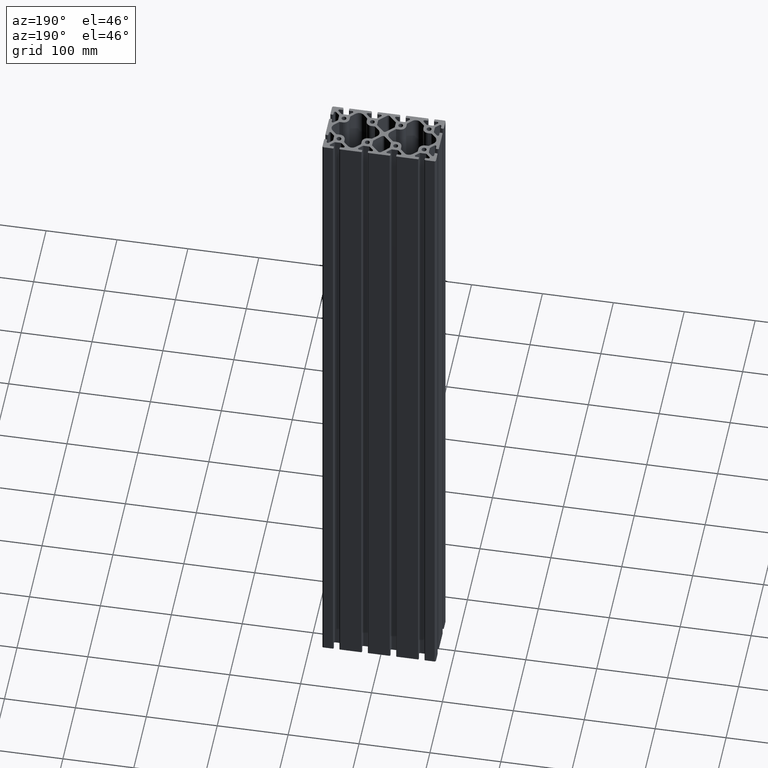
[diagram: clean part render]
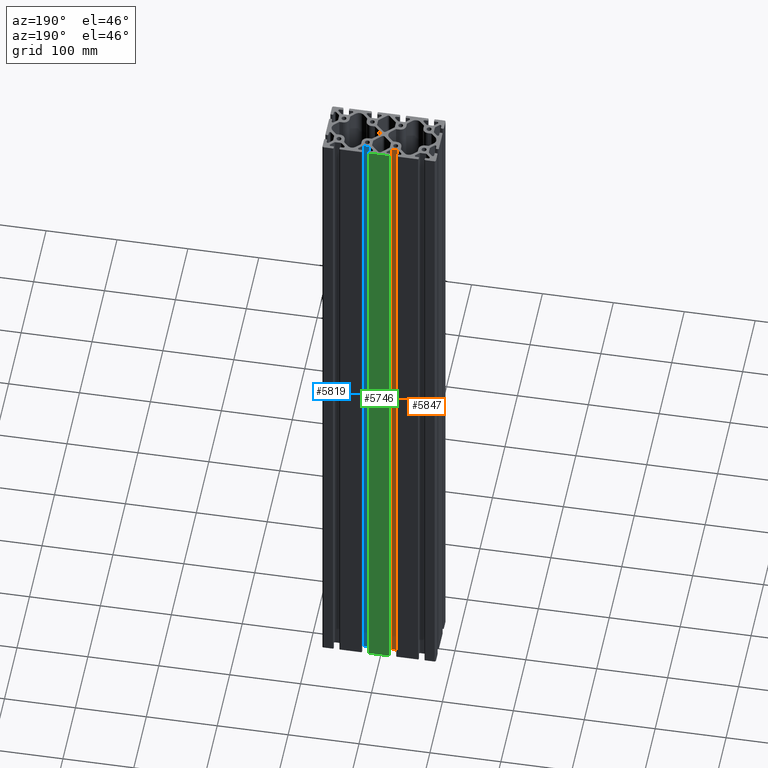
[diagram: same view with three faces highlighted in distinct colors, each labeled with its STEP entity id]
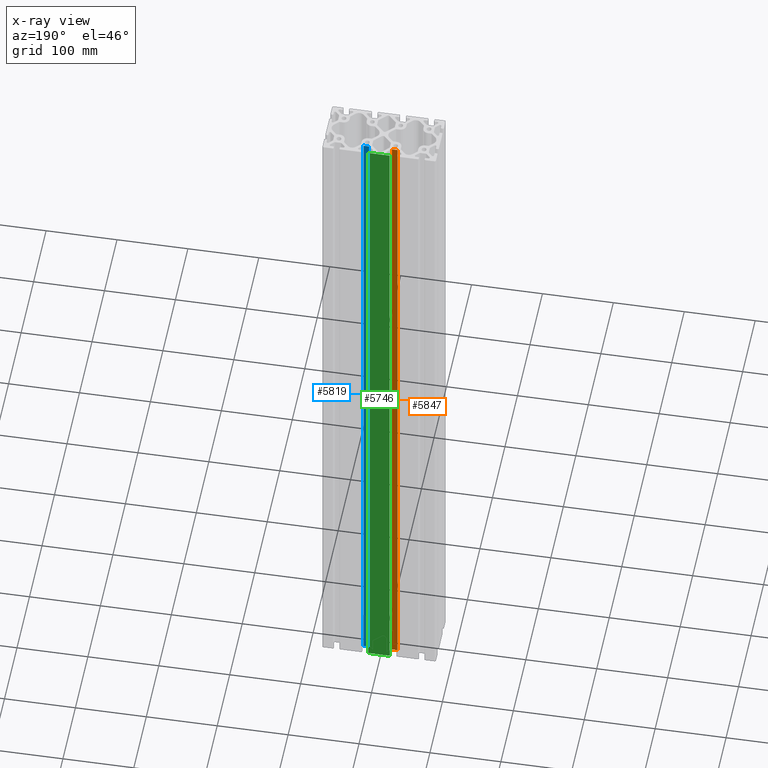
[diagram: x-ray of the same camera — body ghosted, the three highlighted faces saturated]
A machine part, auxiliary view with three faces highlighted in distinct colors.
The next image is the same camera in x-ray (body ghosted, the three faces saturated) — at least one of them is partly hidden behind the body in this view.
Their STEP definitions:

[orange] entity #5847 — the highlighted planar face has unit normal (0, -1, 0).
#112=PLANE('',#6472);
#347=FACE_OUTER_BOUND('',#669,.T.);
#669=EDGE_LOOP('',(#4989,#4990,#4991,#4992));
#970=LINE('',#8946,#1554);
#1101=LINE('',#9453,#1685);
#1308=LINE('',#9960,#1892);
#1310=LINE('',#9963,#1894);
#1554=VECTOR('',#7069,10.);
#1685=VECTOR('',#7476,10.);
#1892=VECTOR('',#8045,10.);
#1894=VECTOR('',#8049,10.);
#2510=VERTEX_POINT('',#8943);
#2511=VERTEX_POINT('',#8945);
#2748=VERTEX_POINT('',#9450);
#2749=VERTEX_POINT('',#9452);
#3131=EDGE_CURVE('',#2510,#2511,#970,.T.);
#3395=EDGE_CURVE('',#2748,#2749,#1101,.T.);
#3676=EDGE_CURVE('',#2511,#2748,#1308,.T.);
#3678=EDGE_CURVE('',#2749,#2510,#1310,.T.);
#4989=ORIENTED_EDGE('',*,*,#3676,.F.);
#4990=ORIENTED_EDGE('',*,*,#3131,.F.);
#4991=ORIENTED_EDGE('',*,*,#3678,.F.);
#4992=ORIENTED_EDGE('',*,*,#3395,.F.);
#5847=ADVANCED_FACE('',(#347),#112,.F.);
#6472=AXIS2_PLACEMENT_3D('',#9962,#8047,#8048);
#7069=DIRECTION('',(1.,0.,0.));
#7476=DIRECTION('',(-1.,0.,0.));
#8045=DIRECTION('',(0.,0.,1.));
#8047=DIRECTION('center_axis',(0.,-1.,0.));
#8048=DIRECTION('ref_axis',(1.,0.,0.));
#8049=DIRECTION('',(0.,0.,-1.));
#8943=CARTESIAN_POINT('',(-23.8431457505076,27.5,0.));
#8945=CARTESIAN_POINT('',(-16.1568542494924,27.5,0.));
#8946=CARTESIAN_POINT('',(-12.3357864376269,27.5,0.));
#9450=CARTESIAN_POINT('',(-16.1568542494924,27.5,1000.));
#9452=CARTESIAN_POINT('',(-23.8431457505076,27.5,1000.));
#9453=CARTESIAN_POINT('',(-12.3357864376269,27.5,1000.));
#9960=CARTESIAN_POINT('',(-16.1568542494924,27.5,0.));
#9962=CARTESIAN_POINT('Origin',(-24.6715728752538,27.5,0.));
#9963=CARTESIAN_POINT('',(-23.8431457505076,27.5,0.));

[blue] entity #5819 — the highlighted planar face has unit normal (0, -1, 0).
#98=PLANE('',#6444);
#319=FACE_OUTER_BOUND('',#641,.T.);
#641=EDGE_LOOP('',(#4877,#4878,#4879,#4880));
#978=LINE('',#8978,#1562);
#1093=LINE('',#9421,#1677);
#1272=LINE('',#9894,#1856);
#1274=LINE('',#9898,#1858);
#1562=VECTOR('',#7093,10.);
#1677=VECTOR('',#7452,10.);
#1856=VECTOR('',#7949,10.);
#1858=VECTOR('',#7955,10.);
#2526=VERTEX_POINT('',#8975);
#2527=VERTEX_POINT('',#8977);
#2732=VERTEX_POINT('',#9418);
#2733=VERTEX_POINT('',#9420);
#3147=EDGE_CURVE('',#2526,#2527,#978,.T.);
#3379=EDGE_CURVE('',#2732,#2733,#1093,.T.);
#3640=EDGE_CURVE('',#2733,#2526,#1272,.T.);
#3642=EDGE_CURVE('',#2527,#2732,#1274,.T.);
#4877=ORIENTED_EDGE('',*,*,#3640,.F.);
#4878=ORIENTED_EDGE('',*,*,#3379,.F.);
#4879=ORIENTED_EDGE('',*,*,#3642,.F.);
#4880=ORIENTED_EDGE('',*,*,#3147,.F.);
#5819=ADVANCED_FACE('',(#319),#98,.F.);
#6444=AXIS2_PLACEMENT_3D('',#9900,#7957,#7958);
#7093=DIRECTION('',(1.,0.,0.));
#7452=DIRECTION('',(-1.,0.,0.));
#7949=DIRECTION('',(0.,0.,-1.));
#7955=DIRECTION('',(0.,0.,1.));
#7957=DIRECTION('center_axis',(0.,-1.,0.));
#7958=DIRECTION('ref_axis',(1.,0.,0.));
#8975=CARTESIAN_POINT('',(16.1568542494924,27.5,0.));
#8977=CARTESIAN_POINT('',(23.8431457505076,27.5,0.));
#8978=CARTESIAN_POINT('',(7.6642135623731,27.5,0.));
#9418=CARTESIAN_POINT('',(23.8431457505076,27.5,1000.));
#9420=CARTESIAN_POINT('',(16.1568542494924,27.5,1000.));
#9421=CARTESIAN_POINT('',(7.66421356237309,27.5,1000.));
#9894=CARTESIAN_POINT('',(16.1568542494924,27.5,0.));
#9898=CARTESIAN_POINT('',(23.8431457505076,27.5,0.));
#9900=CARTESIAN_POINT('Origin',(15.3284271247462,27.5,0.));

[green] entity #5746 — the highlighted planar face has unit normal (0, 1, 0).
#69=PLANE('',#6371);
#246=FACE_OUTER_BOUND('',#568,.T.);
#568=EDGE_LOOP('',(#4585,#4586,#4587,#4588));
#974=LINE('',#8962,#1558);
#1097=LINE('',#9437,#1681);
#1175=LINE('',#9726,#1759);
#1177=LINE('',#9729,#1761);
#1558=VECTOR('',#7081,10.);
#1681=VECTOR('',#7464,10.);
#1759=VECTOR('',#7710,10.);
#1761=VECTOR('',#7714,10.);
#2518=VERTEX_POINT('',#8959);
#2519=VERTEX_POINT('',#8961);
#2740=VERTEX_POINT('',#9434);
#2741=VERTEX_POINT('',#9436);
#3139=EDGE_CURVE('',#2518,#2519,#974,.T.);
#3387=EDGE_CURVE('',#2740,#2741,#1097,.T.);
#3543=EDGE_CURVE('',#2519,#2740,#1175,.T.);
#3545=EDGE_CURVE('',#2741,#2518,#1177,.T.);
#4585=ORIENTED_EDGE('',*,*,#3543,.F.);
#4586=ORIENTED_EDGE('',*,*,#3139,.F.);
#4587=ORIENTED_EDGE('',*,*,#3545,.F.);
#4588=ORIENTED_EDGE('',*,*,#3387,.F.);
#5746=ADVANCED_FACE('',(#246),#69,.T.);
#6371=AXIS2_PLACEMENT_3D('',#9728,#7712,#7713);
#7081=DIRECTION('',(1.,0.,0.));
#7464=DIRECTION('',(-1.,0.,0.));
#7710=DIRECTION('',(0.,0.,1.));
#7712=DIRECTION('center_axis',(0.,1.,0.));
#7713=DIRECTION('ref_axis',(-1.,0.,0.));
#7714=DIRECTION('',(0.,0.,-1.));
#8959=CARTESIAN_POINT('',(-14.85,40.,0.));
#8961=CARTESIAN_POINT('',(14.85,40.,0.));
#8962=CARTESIAN_POINT('',(-80.,40.,0.));
#9434=CARTESIAN_POINT('',(14.85,40.,1000.));
#9436=CARTESIAN_POINT('',(-14.85,40.,1000.));
#9437=CARTESIAN_POINT('',(-80.,40.,1000.));
#9726=CARTESIAN_POINT('',(14.85,40.,0.));
#9728=CARTESIAN_POINT('Origin',(80.,40.,0.));
#9729=CARTESIAN_POINT('',(-14.85,40.,0.));